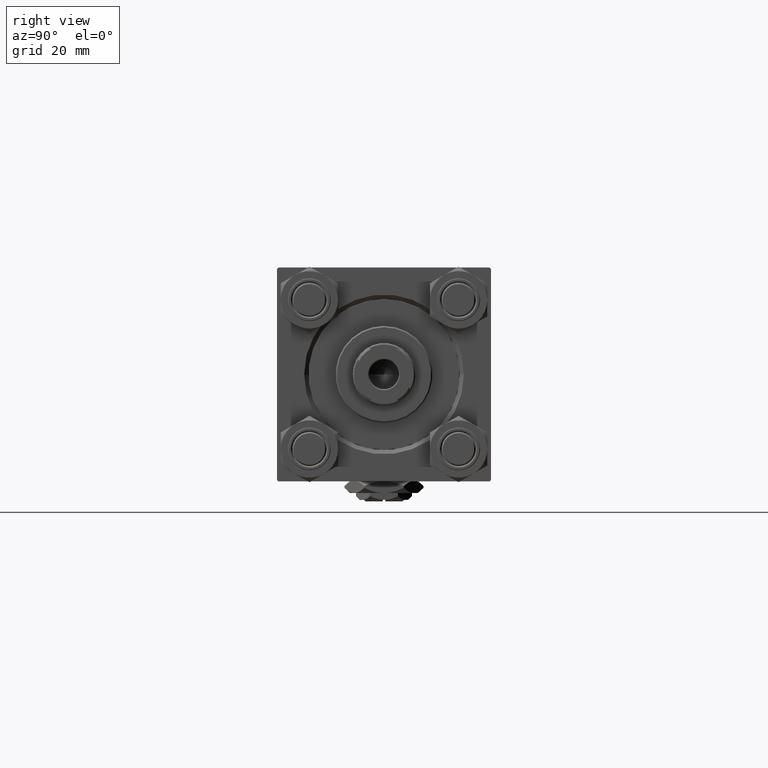
[diagram: clean part render]
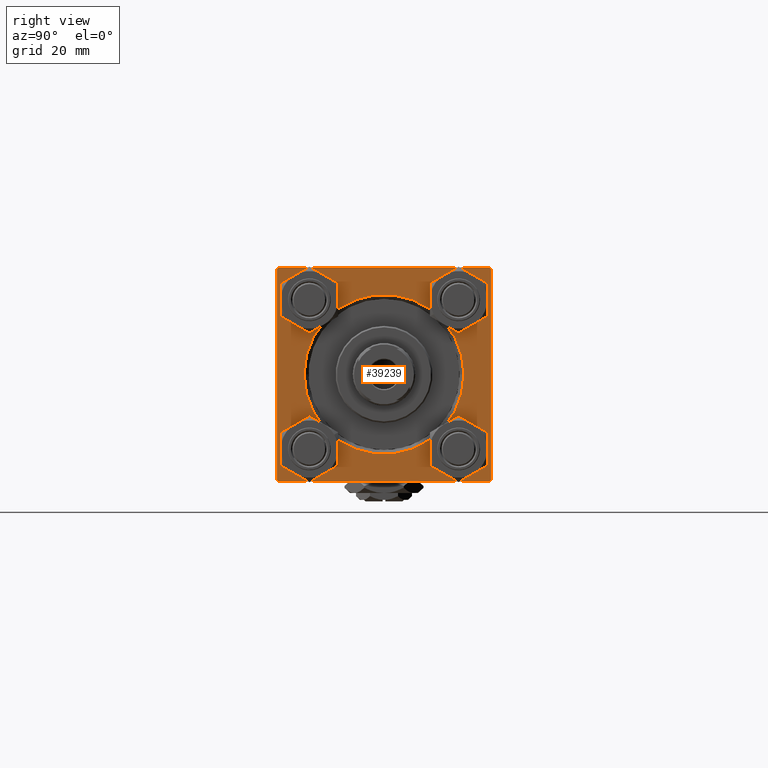
[diagram: same view with one face highlighted and labeled with its STEP entity id]
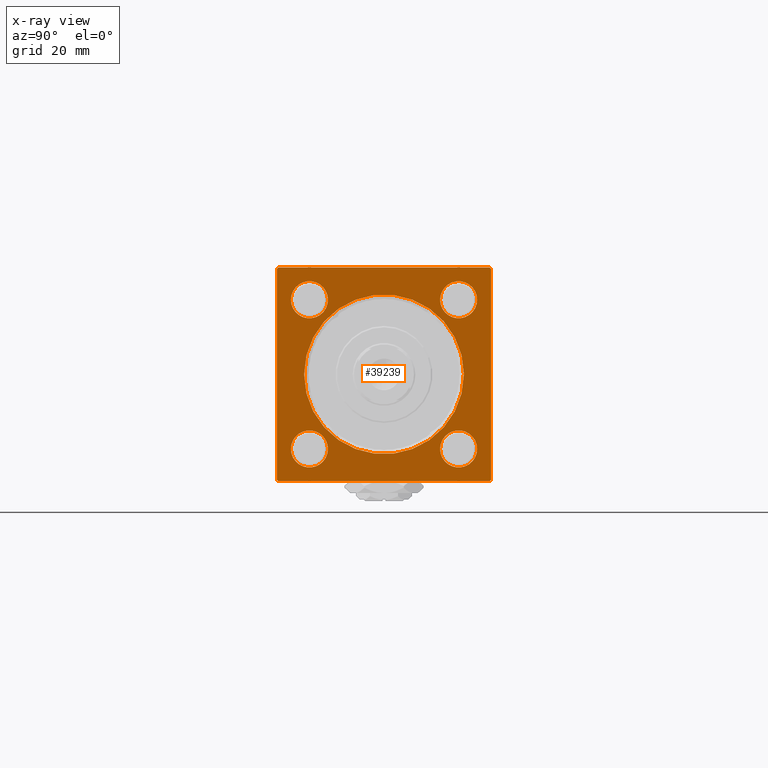
[diagram: x-ray of the same camera — body ghosted, the highlighted face saturated]
A machine part, right view. The second image highlights one B-rep face of the part: STEP entity #39239.
The next image is the same camera in x-ray: the body ghosted, the highlighted face saturated — about 0% of this face is hidden behind the body in this view.
In plain terms, the highlighted planar face has unit normal (-1, 0, 0).
Its self-contained STEP definition (entity closure, byte-faithful):
#75 = DIRECTION ( 'NONE',  ( -1.000000000000000000, -0.000000000000000000, 0.000000000000000000 ) ) ;
#100 = EDGE_CURVE ( 'NONE', #44811, #16612, #3709, .T. ) ;
#254 = EDGE_CURVE ( 'NONE', #13114, #25491, #50833, .T. ) ;
#1797 = VECTOR ( 'NONE', #4113, 1000.000000000000000 ) ;
#1997 = VERTEX_POINT ( 'NONE', #29964 ) ;
#2507 = VERTEX_POINT ( 'NONE', #10961 ) ;
#2589 = CARTESIAN_POINT ( 'NONE',  ( 154.0000000000000000, -26.15000000000000213, -26.15000000000000213 ) ) ;
#2757 = CARTESIAN_POINT ( 'NONE',  ( 154.0000000000000000, 3.429011037612588881E-15, 27.99999999999999645 ) ) ;
#2963 = CARTESIAN_POINT ( 'NONE',  ( 154.0000000000000000, 26.14999999999999858, 32.65000000000001279 ) ) ;
#3117 = DIRECTION ( 'NONE',  ( 0.000000000000000000, 0.000000000000000000, 1.000000000000000000 ) ) ;
#3231 = DIRECTION ( 'NONE',  ( -0.000000000000000000, -0.7071067811865474617, -0.7071067811865474617 ) ) ;
#3349 = CARTESIAN_POINT ( 'NONE',  ( 154.0000000000000000, 0.000000000000000000, 0.000000000000000000 ) ) ;
#3580 = CARTESIAN_POINT ( 'NONE',  ( 154.0000000000000000, 0.000000000000000000, 0.000000000000000000 ) ) ;
#3637 = AXIS2_PLACEMENT_3D ( 'NONE', #2589, #18450, #21319 ) ;
#3658 = DIRECTION ( 'NONE',  ( 0.000000000000000000, 0.000000000000000000, 1.000000000000000000 ) ) ;
#3709 = CIRCLE ( 'NONE', #33552, 6.500000000000002665 ) ;
#4113 = DIRECTION ( 'NONE',  ( 0.000000000000000000, -9.251858538542972814E-17, -1.000000000000000000 ) ) ;
#4157 = VERTEX_POINT ( 'NONE', #44958 ) ;
#4660 = CARTESIAN_POINT ( 'NONE',  ( 154.0000000000000000, 26.14999999999999858, -19.64999999999999503 ) ) ;
#4852 = ORIENTED_EDGE ( 'NONE', *, *, #36472, .T. ) ;
#4909 = CARTESIAN_POINT ( 'NONE',  ( 154.0000000000000000, 37.50000000000000000, 37.49999999999999289 ) ) ;
#5238 = EDGE_LOOP ( 'NONE', ( #33353, #11161 ) ) ;
#5559 = ORIENTED_EDGE ( 'NONE', *, *, #13948, .T. ) ;
#6725 = FACE_BOUND ( 'NONE', #14887, .T. ) ;
#7391 = DIRECTION ( 'NONE',  ( 0.000000000000000000, 0.000000000000000000, 1.000000000000000000 ) ) ;
#8679 = VECTOR ( 'NONE', #28713, 1000.000000000000114 ) ;
#8734 = DIRECTION ( 'NONE',  ( 0.000000000000000000, 0.000000000000000000, 1.000000000000000000 ) ) ;
#9545 = CARTESIAN_POINT ( 'NONE',  ( 154.0000000000000000, -36.99999999999997158, 37.49999999999997868 ) ) ;
#10429 = VECTOR ( 'NONE', #26317, 1000.000000000000000 ) ;
#10605 = FACE_BOUND ( 'NONE', #12329, .T. ) ;
#10724 = AXIS2_PLACEMENT_3D ( 'NONE', #3349, #22320, #38392 ) ;
#10739 = ORIENTED_EDGE ( 'NONE', *, *, #254, .T. ) ;
#10745 = ORIENTED_EDGE ( 'NONE', *, *, #46757, .F. ) ;
#10961 = CARTESIAN_POINT ( 'NONE',  ( 154.0000000000000000, -26.15000000000000213, -19.64999999999999503 ) ) ;
#11161 = ORIENTED_EDGE ( 'NONE', *, *, #25688, .T. ) ;
#11259 = CARTESIAN_POINT ( 'NONE',  ( 154.0000000000000000, -37.50000000000000000, 36.99999999999995026 ) ) ;
#11484 = ORIENTED_EDGE ( 'NONE', *, *, #31838, .T. ) ;
#11580 = CARTESIAN_POINT ( 'NONE',  ( 154.0000000000000000, -37.50000000000000711, -37.00000000000000711 ) ) ;
#11754 = VERTEX_POINT ( 'NONE', #20569 ) ;
#12000 = CIRCLE ( 'NONE', #26938, 27.99999999999999645 ) ;
#12008 = VECTOR ( 'NONE', #19928, 1000.000000000000000 ) ;
#12329 = EDGE_LOOP ( 'NONE', ( #4852, #18237 ) ) ;
#12937 = DIRECTION ( 'NONE',  ( 0.000000000000000000, 0.000000000000000000, -1.000000000000000000 ) ) ;
#13114 = VERTEX_POINT ( 'NONE', #36454 ) ;
#13719 = ORIENTED_EDGE ( 'NONE', *, *, #23660, .T. ) ;
#13832 = ORIENTED_EDGE ( 'NONE', *, *, #21373, .T. ) ;
#13948 = EDGE_CURVE ( 'NONE', #11754, #36525, #47210, .T. ) ;
#14205 = CARTESIAN_POINT ( 'NONE',  ( 154.0000000000000000, 37.50000000000000000, -36.99999999999999289 ) ) ;
#14887 = EDGE_LOOP ( 'NONE', ( #26580, #11484 ) ) ;
#15019 = DIRECTION ( 'NONE',  ( -1.000000000000000000, -0.000000000000000000, 0.000000000000000000 ) ) ;
#15411 = CARTESIAN_POINT ( 'NONE',  ( 154.0000000000000000, 26.14999999999999858, 26.15000000000000213 ) ) ;
#15544 = LINE ( 'NONE', #42811, #1797 ) ;
#15606 = CARTESIAN_POINT ( 'NONE',  ( 154.0000000000000000, -26.14999999999999147, 26.14999999999999503 ) ) ;
#16536 = CARTESIAN_POINT ( 'NONE',  ( 154.0000000000000000, 0.000000000000000000, 0.000000000000000000 ) ) ;
#16612 = VERTEX_POINT ( 'NONE', #32104 ) ;
#16943 = ORIENTED_EDGE ( 'NONE', *, *, #40822, .T. ) ;
#17972 = AXIS2_PLACEMENT_3D ( 'NONE', #31454, #43928, #23692 ) ;
#18237 = ORIENTED_EDGE ( 'NONE', *, *, #29414, .T. ) ;
#18309 = CARTESIAN_POINT ( 'NONE',  ( 154.0000000000000000, 26.14999999999999858, -26.15000000000000213 ) ) ;
#18336 = ORIENTED_EDGE ( 'NONE', *, *, #44509, .T. ) ;
#18450 = DIRECTION ( 'NONE',  ( -1.000000000000000000, -0.000000000000000000, 0.000000000000000000 ) ) ;
#18774 = CARTESIAN_POINT ( 'NONE',  ( 154.0000000000000000, 37.50000000000000000, -36.99999999999999289 ) ) ;
#18806 = DIRECTION ( 'NONE',  ( -1.000000000000000000, -0.000000000000000000, 0.000000000000000000 ) ) ;
#19050 = CARTESIAN_POINT ( 'NONE',  ( 154.0000000000000000, 37.00000000000000000, -37.50000000000000000 ) ) ;
#19198 = DIRECTION ( 'NONE',  ( 0.000000000000000000, 0.000000000000000000, 1.000000000000000000 ) ) ;
#19332 = DIRECTION ( 'NONE',  ( 0.000000000000000000, 0.000000000000000000, 1.000000000000000000 ) ) ;
#19458 = FACE_BOUND ( 'NONE', #5238, .T. ) ;
#19460 = CARTESIAN_POINT ( 'NONE',  ( 154.0000000000000000, -26.14999999999999147, 32.65000000000000568 ) ) ;
#19928 = DIRECTION ( 'NONE',  ( 0.000000000000000000, -1.000000000000000000, -1.850371707708594316E-16 ) ) ;
#20569 = CARTESIAN_POINT ( 'NONE',  ( 154.0000000000000000, 26.14999999999999858, 19.64999999999999858 ) ) ;
#21241 = CARTESIAN_POINT ( 'NONE',  ( 154.0000000000000000, 0.000000000000000000, -27.99999999999999645 ) ) ;
#21319 = DIRECTION ( 'NONE',  ( 0.000000000000000000, 0.000000000000000000, 1.000000000000000000 ) ) ;
#21373 = EDGE_CURVE ( 'NONE', #36525, #11754, #27620, .T. ) ;
#21908 = VERTEX_POINT ( 'NONE', #51146 ) ;
#22320 = DIRECTION ( 'NONE',  ( -1.000000000000000000, -0.000000000000000000, 0.000000000000000000 ) ) ;
#22871 = CARTESIAN_POINT ( 'NONE',  ( 154.0000000000000000, -26.15000000000000213, -26.15000000000000213 ) ) ;
#23404 = VECTOR ( 'NONE', #12937, 1000.000000000000000 ) ;
#23450 = EDGE_CURVE ( 'NONE', #29674, #2507, #26005, .T. ) ;
#23479 = DIRECTION ( 'NONE',  ( 0.000000000000000000, 0.000000000000000000, 1.000000000000000000 ) ) ;
#23660 = EDGE_CURVE ( 'NONE', #37567, #31477, #37075, .T. ) ;
#23667 = DIRECTION ( 'NONE',  ( -1.000000000000000000, -0.000000000000000000, 0.000000000000000000 ) ) ;
#23692 = DIRECTION ( 'NONE',  ( 0.000000000000000000, 0.000000000000000000, 1.000000000000000000 ) ) ;
#23747 = CARTESIAN_POINT ( 'NONE',  ( 154.0000000000000000, 26.14999999999999858, -32.65000000000001279 ) ) ;
#24088 = EDGE_CURVE ( 'NONE', #21908, #13114, #35478, .T. ) ;
#24808 = AXIS2_PLACEMENT_3D ( 'NONE', #27083, #75, #19332 ) ;
#25491 = VERTEX_POINT ( 'NONE', #9545 ) ;
#25643 = DIRECTION ( 'NONE',  ( -0.000000000000000000, 0.7071067811865425767, 0.7071067811865525687 ) ) ;
#25688 = EDGE_CURVE ( 'NONE', #27092, #27802, #12000, .T. ) ;
#26005 = CIRCLE ( 'NONE', #3637, 6.500000000000008882 ) ;
#26317 = DIRECTION ( 'NONE',  ( 0.000000000000000000, 0.7071067811865671127, -0.7071067811865279218 ) ) ;
#26451 = FACE_OUTER_BOUND ( 'NONE', #35163, .T. ) ;
#26580 = ORIENTED_EDGE ( 'NONE', *, *, #23450, .T. ) ;
#26842 = LINE ( 'NONE', #11259, #48104 ) ;
#26938 = AXIS2_PLACEMENT_3D ( 'NONE', #16536, #28456, #8734 ) ;
#27083 = CARTESIAN_POINT ( 'NONE',  ( 154.0000000000000000, 26.14999999999999858, 26.15000000000000213 ) ) ;
#27092 = VERTEX_POINT ( 'NONE', #2757 ) ;
#27190 = CIRCLE ( 'NONE', #40593, 6.500000000000008882 ) ;
#27349 = CARTESIAN_POINT ( 'NONE',  ( 154.0000000000000000, 37.50000000000000000, -37.50000000000000000 ) ) ;
#27620 = CIRCLE ( 'NONE', #48379, 6.500000000000002665 ) ;
#27802 = VERTEX_POINT ( 'NONE', #21241 ) ;
#28153 = EDGE_CURVE ( 'NONE', #44076, #4157, #41652, .T. ) ;
#28190 = CARTESIAN_POINT ( 'NONE',  ( 154.0000000000000000, 37.50000000000000000, 37.49999999999999289 ) ) ;
#28456 = DIRECTION ( 'NONE',  ( -1.000000000000000000, -0.000000000000000000, 0.000000000000000000 ) ) ;
#28713 = DIRECTION ( 'NONE',  ( 0.000000000000000000, -0.7071067811865474617, 0.7071067811865474617 ) ) ;
#28824 = CIRCLE ( 'NONE', #32966, 6.500000000000008882 ) ;
#29414 = EDGE_CURVE ( 'NONE', #33203, #30163, #41172, .T. ) ;
#29674 = VERTEX_POINT ( 'NONE', #42500 ) ;
#29942 = CARTESIAN_POINT ( 'NONE',  ( 154.0000000000000000, -36.99999999999998579, -37.50000000000000000 ) ) ;
#29964 = CARTESIAN_POINT ( 'NONE',  ( 154.0000000000000000, -37.50000000000000000, 36.99999999999995026 ) ) ;
#30163 = VERTEX_POINT ( 'NONE', #23747 ) ;
#30674 = EDGE_LOOP ( 'NONE', ( #18336, #50686 ) ) ;
#31233 = DIRECTION ( 'NONE',  ( -1.000000000000000000, -0.000000000000000000, 0.000000000000000000 ) ) ;
#31454 = CARTESIAN_POINT ( 'NONE',  ( 154.0000000000000000, 26.14999999999999858, -26.15000000000000213 ) ) ;
#31477 = VERTEX_POINT ( 'NONE', #18774 ) ;
#31838 = EDGE_CURVE ( 'NONE', #2507, #29674, #28824, .T. ) ;
#32104 = CARTESIAN_POINT ( 'NONE',  ( 154.0000000000000000, -26.14999999999999147, 19.64999999999999147 ) ) ;
#32966 = AXIS2_PLACEMENT_3D ( 'NONE', #22871, #38685, #3117 ) ;
#33104 = ORIENTED_EDGE ( 'NONE', *, *, #24088, .T. ) ;
#33203 = VERTEX_POINT ( 'NONE', #4660 ) ;
#33353 = ORIENTED_EDGE ( 'NONE', *, *, #34250, .T. ) ;
#33552 = AXIS2_PLACEMENT_3D ( 'NONE', #49967, #18806, #37995 ) ;
#34065 = AXIS2_PLACEMENT_3D ( 'NONE', #15606, #23667, #3658 ) ;
#34114 = DIRECTION ( 'NONE',  ( -1.000000000000000000, -0.000000000000000000, 0.000000000000000000 ) ) ;
#34250 = EDGE_CURVE ( 'NONE', #27802, #27092, #37201, .T. ) ;
#35163 = EDGE_LOOP ( 'NONE', ( #43520, #42857, #41813, #13719, #10745, #33104, #10739, #16943 ) ) ;
#35478 = LINE ( 'NONE', #35994, #8679 ) ;
#35994 = CARTESIAN_POINT ( 'NONE',  ( 154.0000000000000000, 37.00000000000000000, 37.49999999999999289 ) ) ;
#36454 = CARTESIAN_POINT ( 'NONE',  ( 154.0000000000000000, 37.00000000000000000, 37.49999999999999289 ) ) ;
#36472 = EDGE_CURVE ( 'NONE', #30163, #33203, #27190, .T. ) ;
#36525 = VERTEX_POINT ( 'NONE', #2963 ) ;
#37075 = LINE ( 'NONE', #14205, #39289 ) ;
#37201 = CIRCLE ( 'NONE', #47165, 27.99999999999999645 ) ;
#37313 = LINE ( 'NONE', #27349, #37451 ) ;
#37451 = VECTOR ( 'NONE', #51014, 1000.000000000000000 ) ;
#37567 = VERTEX_POINT ( 'NONE', #19050 ) ;
#37995 = DIRECTION ( 'NONE',  ( 0.000000000000000000, 0.000000000000000000, 1.000000000000000000 ) ) ;
#38392 = DIRECTION ( 'NONE',  ( 0.000000000000000000, 0.000000000000000000, 1.000000000000000000 ) ) ;
#38685 = DIRECTION ( 'NONE',  ( -1.000000000000000000, -0.000000000000000000, 0.000000000000000000 ) ) ;
#39169 = FACE_BOUND ( 'NONE', #30674, .T. ) ;
#39239 = ADVANCED_FACE ( 'NONE', ( #6725, #10605, #42555, #39169, #19458, #26451 ), #42296, .F. ) ;
#39289 = VECTOR ( 'NONE', #25643, 999.9999999999998863 ) ;
#40593 = AXIS2_PLACEMENT_3D ( 'NONE', #18309, #34114, #7391 ) ;
#40822 = EDGE_CURVE ( 'NONE', #25491, #1997, #26842, .T. ) ;
#41172 = CIRCLE ( 'NONE', #17972, 6.500000000000008882 ) ;
#41652 = LINE ( 'NONE', #29942, #10429 ) ;
#41813 = ORIENTED_EDGE ( 'NONE', *, *, #45087, .F. ) ;
#42296 = PLANE ( 'NONE',  #10724 ) ;
#42500 = CARTESIAN_POINT ( 'NONE',  ( 154.0000000000000000, -26.15000000000000213, -32.65000000000001279 ) ) ;
#42555 = FACE_BOUND ( 'NONE', #47841, .T. ) ;
#42811 = CARTESIAN_POINT ( 'NONE',  ( 154.0000000000000000, -37.50000000000000000, 37.49999999999997868 ) ) ;
#42857 = ORIENTED_EDGE ( 'NONE', *, *, #28153, .T. ) ;
#43520 = ORIENTED_EDGE ( 'NONE', *, *, #44861, .T. ) ;
#43928 = DIRECTION ( 'NONE',  ( -1.000000000000000000, -0.000000000000000000, 0.000000000000000000 ) ) ;
#44076 = VERTEX_POINT ( 'NONE', #11580 ) ;
#44509 = EDGE_CURVE ( 'NONE', #16612, #44811, #45688, .T. ) ;
#44811 = VERTEX_POINT ( 'NONE', #19460 ) ;
#44861 = EDGE_CURVE ( 'NONE', #1997, #44076, #15544, .T. ) ;
#44958 = CARTESIAN_POINT ( 'NONE',  ( 154.0000000000000000, -36.99999999999998579, -37.50000000000000000 ) ) ;
#45087 = EDGE_CURVE ( 'NONE', #37567, #4157, #37313, .T. ) ;
#45688 = CIRCLE ( 'NONE', #34065, 6.500000000000002665 ) ;
#46757 = EDGE_CURVE ( 'NONE', #21908, #31477, #49295, .T. ) ;
#47165 = AXIS2_PLACEMENT_3D ( 'NONE', #3580, #15019, #19198 ) ;
#47210 = CIRCLE ( 'NONE', #24808, 6.500000000000002665 ) ;
#47841 = EDGE_LOOP ( 'NONE', ( #5559, #13832 ) ) ;
#48104 = VECTOR ( 'NONE', #3231, 1000.000000000000114 ) ;
#48379 = AXIS2_PLACEMENT_3D ( 'NONE', #15411, #31233, #23479 ) ;
#49295 = LINE ( 'NONE', #4909, #23404 ) ;
#49967 = CARTESIAN_POINT ( 'NONE',  ( 154.0000000000000000, -26.14999999999999147, 26.14999999999999503 ) ) ;
#50686 = ORIENTED_EDGE ( 'NONE', *, *, #100, .T. ) ;
#50833 = LINE ( 'NONE', #28190, #12008 ) ;
#51014 = DIRECTION ( 'NONE',  ( 0.000000000000000000, -1.000000000000000000, 0.000000000000000000 ) ) ;
#51146 = CARTESIAN_POINT ( 'NONE',  ( 154.0000000000000000, 37.50000000000000000, 36.99999999999999289 ) ) ;